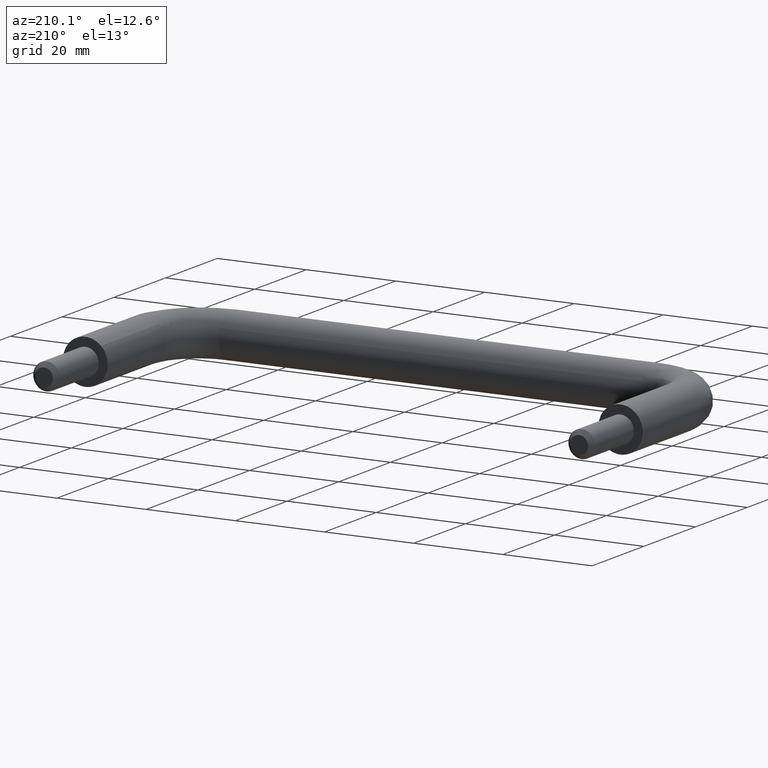
[diagram: clean part render]
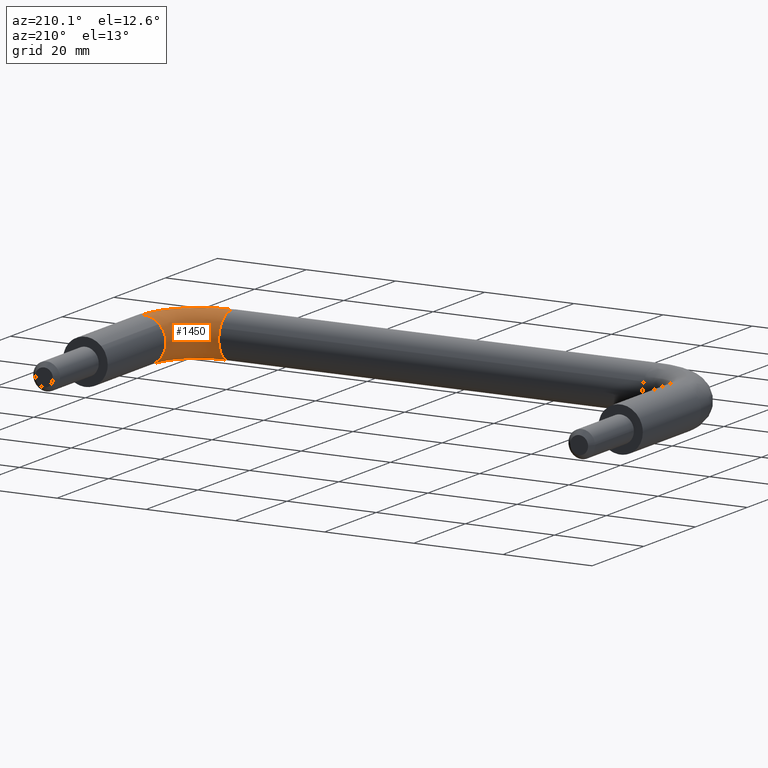
[diagram: same view with one face highlighted and labeled with its STEP entity id]
A machine part, auxiliary view. The second image highlights one B-rep face of the part: STEP entity #1450.
In plain terms, the highlighted face is a freeform B-spline surface patch.
Its self-contained STEP definition (entity closure, byte-faithful):
#728=CARTESIAN_POINT('',(119.937169799793200,-22.500000000606040,-4.999605221009151));
#729=VERTEX_POINT('',#728);
#745=CARTESIAN_POINT('',(115.0,-22.500000000000000,0.0));
#746=VERTEX_POINT('',#745);
#747=CARTESIAN_POINT('',(119.937169799793270,-22.500000000606033,-4.999605221009151));
#748=CARTESIAN_POINT('',(114.999999999999970,-22.500000000000004,-4.937559647976037));
#749=CARTESIAN_POINT('',(115.0,-22.500000000000000,0.0));
#757=(BOUNDED_CURVE()B_SPLINE_CURVE(2,(#747,#748,#749),.UNSPECIFIED.,.F.,.U.)B_SPLINE_CURVE_WITH_KNOTS((3,3),(0.252215704133851,0.500000000000000),.UNSPECIFIED.)CURVE()GEOMETRIC_REPRESENTATION_ITEM()RATIONAL_B_SPLINE_CURVE((0.994854295516091,0.709702640049355,1.0))REPRESENTATION_ITEM(''));
#758=EDGE_CURVE('',#729,#746,#757,.T.);
#760=CARTESIAN_POINT('',(116.495453924891810,-22.500000000000011,3.566252487898725));
#761=VERTEX_POINT('',#760);
#762=CARTESIAN_POINT('',(115.0,-22.500000000000000,0.0));
#763=CARTESIAN_POINT('',(114.999999999999990,-22.499999999999996,2.096674414984332));
#764=CARTESIAN_POINT('',(116.495453924891820,-22.500000000000007,3.566252487898725));
#772=(BOUNDED_CURVE()B_SPLINE_CURVE(2,(#762,#763,#764),.UNSPECIFIED.,.F.,.U.)B_SPLINE_CURVE_WITH_KNOTS((3,3),(0.500000000000000,0.626316778441131),.UNSPECIFIED.)CURVE()GEOMETRIC_REPRESENTATION_ITEM()RATIONAL_B_SPLINE_CURVE((1.0,0.852010688688925,0.853569641766144))REPRESENTATION_ITEM(''));
#773=EDGE_CURVE('',#746,#761,#772,.T.);
#891=CARTESIAN_POINT('',(120.348666259219400,-22.500000000209219,4.987828369108341));
#892=VERTEX_POINT('',#891);
#893=CARTESIAN_POINT('',(116.495453924891820,-22.500000000000011,3.566252487898725));
#894=CARTESIAN_POINT('',(117.954446396127880,-22.500000000000000,5.0));
#895=CARTESIAN_POINT('',(120.0,-22.500000000000000,5.0));
#896=CARTESIAN_POINT('',(120.174545580720660,-22.499999999999993,5.0));
#897=CARTESIAN_POINT('',(120.348666259219330,-22.500000000209216,4.987828369108341));
#905=(BOUNDED_CURVE()B_SPLINE_CURVE(2,(#893,#894,#895,#896,#897),.UNSPECIFIED.,.F.,.U.)B_SPLINE_CURVE_WITH_KNOTS((3,2,3),(0.626316778441131,0.750000000000000,0.762166313557421),.UNSPECIFIED.)CURVE()GEOMETRIC_REPRESENTATION_ITEM()RATIONAL_B_SPLINE_CURVE((0.853569641766144,0.855096092497621,1.0,0.985746277044292,0.972879876191303))REPRESENTATION_ITEM(''));
#906=EDGE_CURVE('',#761,#892,#905,.T.);
#950=CARTESIAN_POINT('',(107.500000000000000,-30.521972536837890,2.224245948443190));
#951=VERTEX_POINT('',#950);
#952=CARTESIAN_POINT('',(107.500000001461900,-35.348666263710392,4.987828368794403));
#953=VERTEX_POINT('',#952);
#954=CARTESIAN_POINT('',(107.500000000000000,-30.521972536837890,2.224245948443190));
#955=CARTESIAN_POINT('',(107.500000000000000,-31.900695591566350,4.999999999999998));
#956=CARTESIAN_POINT('',(107.500000000000000,-35.0,5.0));
#957=CARTESIAN_POINT('',(107.499999999999960,-35.174545585228110,5.0));
#958=CARTESIAN_POINT('',(107.500000001461910,-35.348666263710385,4.987828368794403));
#966=(BOUNDED_CURVE()B_SPLINE_CURVE(2,(#954,#955,#956,#957,#958),.UNSPECIFIED.,.F.,.U.)B_SPLINE_CURVE_WITH_KNOTS((3,2,3),(0.575619190624772,0.750000000000000,0.762166313867127),.UNSPECIFIED.)CURVE()GEOMETRIC_REPRESENTATION_ITEM()RATIONAL_B_SPLINE_CURVE((0.876408099966359,0.795700173771178,1.0,0.985746276681450,0.972879875536249))REPRESENTATION_ITEM(''));
#967=EDGE_CURVE('',#951,#953,#966,.T.);
#1040=CARTESIAN_POINT('',(107.500000000324110,-31.558227913072550,-3.626872605960986));
#1041=VERTEX_POINT('',#1040);
#1047=CARTESIAN_POINT('',(107.500000001026810,-34.937169798926647,-4.999605220998261));
#1048=VERTEX_POINT('',#1047);
#1049=CARTESIAN_POINT('',(107.500000001026790,-34.937169798926654,-4.999605220998261));
#1050=CARTESIAN_POINT('',(107.500000000619520,-32.978853110185419,-4.974994990965148));
#1051=CARTESIAN_POINT('',(107.500000000324090,-31.558227913072557,-3.626872605960986));
#1059=(BOUNDED_CURVE()B_SPLINE_CURVE(2,(#1049,#1050,#1051),.UNSPECIFIED.,.F.,.U.)B_SPLINE_CURVE_WITH_KNOTS((3,3),(0.252215704194816,0.371049493739702),.UNSPECIFIED.)CURVE()GEOMETRIC_REPRESENTATION_ITEM()RATIONAL_B_SPLINE_CURVE((0.994854295375772,0.858099656915595,0.853699663807202))REPRESENTATION_ITEM(''));
#1060=EDGE_CURVE('',#1048,#1041,#1059,.T.);
#1109=CARTESIAN_POINT('',(107.500000000000000,-30.0,0.0));
#1110=VERTEX_POINT('',#1109);
#1111=CARTESIAN_POINT('',(107.500000000000000,-30.0,0.0));
#1112=CARTESIAN_POINT('',(107.499999999999990,-30.000000000000011,1.173369647390433));
#1113=CARTESIAN_POINT('',(107.500000000000000,-30.521972536837890,2.224245948443190));
#1121=(BOUNDED_CURVE()B_SPLINE_CURVE(2,(#1111,#1112,#1113),.UNSPECIFIED.,.F.,.U.)B_SPLINE_CURVE_WITH_KNOTS((3,3),(0.500000000000000,0.575619190624772),.UNSPECIFIED.)CURVE()GEOMETRIC_REPRESENTATION_ITEM()RATIONAL_B_SPLINE_CURVE((1.0,0.911406607415370,0.876408099966359))REPRESENTATION_ITEM(''));
#1122=EDGE_CURVE('',#1110,#951,#1121,.T.);
#1124=CARTESIAN_POINT('',(107.500000000324090,-31.558227913072553,-3.626872605960986));
#1125=CARTESIAN_POINT('',(107.500000000000000,-30.000000000000007,-2.148170175827158));
#1126=CARTESIAN_POINT('',(107.500000000000000,-30.0,0.0));
#1134=(BOUNDED_CURVE()B_SPLINE_CURVE(2,(#1124,#1125,#1126),.UNSPECIFIED.,.F.,.U.)B_SPLINE_CURVE_WITH_KNOTS((3,3),(0.371049493739702,0.500000000000000),.UNSPECIFIED.)CURVE()GEOMETRIC_REPRESENTATION_ITEM()RATIONAL_B_SPLINE_CURVE((0.853699663807202,0.848925084615189,1.0))REPRESENTATION_ITEM(''));
#1135=EDGE_CURVE('',#1041,#1110,#1134,.T.);
#1386=CARTESIAN_POINT('',(106.606541061896070,-35.317564068823465,4.987828388444838));
#1387=CARTESIAN_POINT('',(121.344915040638510,-36.344914655387313,4.987828388444835));
#1388=CARTESIAN_POINT('',(120.317564043961940,-21.606540705232142,4.987828388444838));
#1389=CARTESIAN_POINT('',(106.616467438591670,-35.175160244941836,4.997807049440652));
#1390=CARTESIAN_POINT('',(121.191097292389510,-36.191096911418526,4.997807049440650));
#1391=CARTESIAN_POINT('',(120.175160220356500,-21.616467085890307,4.997807049440652));
#1392=CARTESIAN_POINT('',(106.626417252596510,-35.032420189365531,4.999605221019078));
#1393=CARTESIAN_POINT('',(121.036916362866730,-36.036915986185967,4.999605221019080));
#1394=CARTESIAN_POINT('',(120.032420165057020,-21.626416903867071,4.999605221019078));
#1395=CARTESIAN_POINT('',(106.974075287894420,-30.044917181192606,5.062435420435842));
#1396=CARTESIAN_POINT('',(115.649655956574730,-30.649655729800887,5.062435420435842));
#1397=CARTESIAN_POINT('',(115.044917166558150,-21.974075077948182,5.062435420435843));
#1398=CARTESIAN_POINT('',(106.978444317591990,-29.982239070673444,0.062830199416764));
#1399=CARTESIAN_POINT('',(115.581954081991870,-30.581953857101912,0.062830199416764));
#1400=CARTESIAN_POINT('',(114.982239056160570,-21.978444109389812,0.062830199416764));
#1401=CARTESIAN_POINT('',(106.982813347289510,-29.919560960154282,-4.936775021602313));
#1402=CARTESIAN_POINT('',(115.514252207408970,-30.514251984402907,-4.936775021602313));
#1403=CARTESIAN_POINT('',(114.919560945762970,-21.982813140831446,-4.936775021602315));
#1404=CARTESIAN_POINT('',(106.635155311991640,-34.907063968327215,-4.999605221019078));
#1405=CARTESIAN_POINT('',(120.901512613700990,-35.901512240787966,-4.999605221019080));
#1406=CARTESIAN_POINT('',(119.907063944261820,-21.635154966750328,-4.999605221019078));
#1414=(BOUNDED_SURFACE()B_SPLINE_SURFACE(2,2,((#1386,#1389,#1392,#1395,#1398,#1401,#1404),(#1387,#1390,#1393,#1396,#1399,#1402,#1405),(#1388,#1391,#1394,#1397,#1400,#1403,#1406)),.UNSPECIFIED.,.F.,.F.,.U.)B_SPLINE_SURFACE_WITH_KNOTS((3,3),(3,2,2,3),(0.0,23.415073753643270),(0.0,0.331370533878608,8.615641781340528,16.899913028802452),.UNSPECIFIED.)GEOMETRIC_REPRESENTATION_ITEM()RATIONAL_B_SPLINE_SURFACE(((0.895729732449210,0.905606490046838,0.916342095240933,0.647951709431553,0.916342095240933,0.647951709431553,0.916342095240933),(0.587800221482116,0.594281596491894,0.601326568744382,0.425202094466791,0.601326568744382,0.425202094466791,0.601326568744382),(0.895729743804760,0.905606501527600,0.916342106857795,0.647951717645915,0.916342106857795,0.647951717645915,0.916342106857795)))REPRESENTATION_ITEM('')SURFACE());
#1415=ORIENTED_EDGE('',*,*,#906,.F.);
#1416=ORIENTED_EDGE('',*,*,#773,.F.);
#1417=ORIENTED_EDGE('',*,*,#758,.F.);
#1418=CARTESIAN_POINT('',(107.500000001026780,-34.937169798926647,-4.999605220998261));
#1419=CARTESIAN_POINT('',(119.937169799371160,-34.937169798529624,-4.999605221019079));
#1420=CARTESIAN_POINT('',(119.937169799793220,-22.500000000606036,-4.999605221009150));
#1428=(BOUNDED_CURVE()B_SPLINE_CURVE(2,(#1418,#1419,#1420),.UNSPECIFIED.,.F.,.U.)B_SPLINE_CURVE_WITH_KNOTS((3,3),(-1.734750791486827,-0.265249208442865),.UNSPECIFIED.)CURVE()GEOMETRIC_REPRESENTATION_ITEM()RATIONAL_B_SPLINE_CURVE((0.889029723515637,0.628638946265650,0.889029723540554))REPRESENTATION_ITEM(''));
#1429=EDGE_CURVE('',#1048,#729,#1428,.T.);
#1430=ORIENTED_EDGE('',*,*,#1429,.F.);
#1431=ORIENTED_EDGE('',*,*,#1060,.T.);
#1432=ORIENTED_EDGE('',*,*,#1135,.T.);
#1433=ORIENTED_EDGE('',*,*,#1122,.T.);
#1434=ORIENTED_EDGE('',*,*,#967,.T.);
#1435=CARTESIAN_POINT('',(107.500000001461860,-35.348666263710378,4.987828368794403));
#1436=CARTESIAN_POINT('',(120.348666257458760,-35.348666254953478,4.987828369202159));
#1437=CARTESIAN_POINT('',(120.348666259219370,-22.500000000209216,4.987828369108343));
#1445=(BOUNDED_CURVE()B_SPLINE_CURVE(2,(#1435,#1436,#1437),.UNSPECIFIED.,.F.,.U.)B_SPLINE_CURVE_WITH_KNOTS((3,3),(-1.734750791421955,-0.265249208375438),.UNSPECIFIED.)CURVE()GEOMETRIC_REPRESENTATION_ITEM()RATIONAL_B_SPLINE_CURVE((0.869031711793350,0.614498216579967,0.869031711863537))REPRESENTATION_ITEM(''));
#1446=EDGE_CURVE('',#953,#892,#1445,.T.);
#1447=ORIENTED_EDGE('',*,*,#1446,.T.);
#1448=EDGE_LOOP('',(#1415,#1416,#1417,#1430,#1431,#1432,#1433,#1434,#1447));
#1449=FACE_OUTER_BOUND('',#1448,.T.);
#1450=ADVANCED_FACE('',(#1449),#1414,.T.);